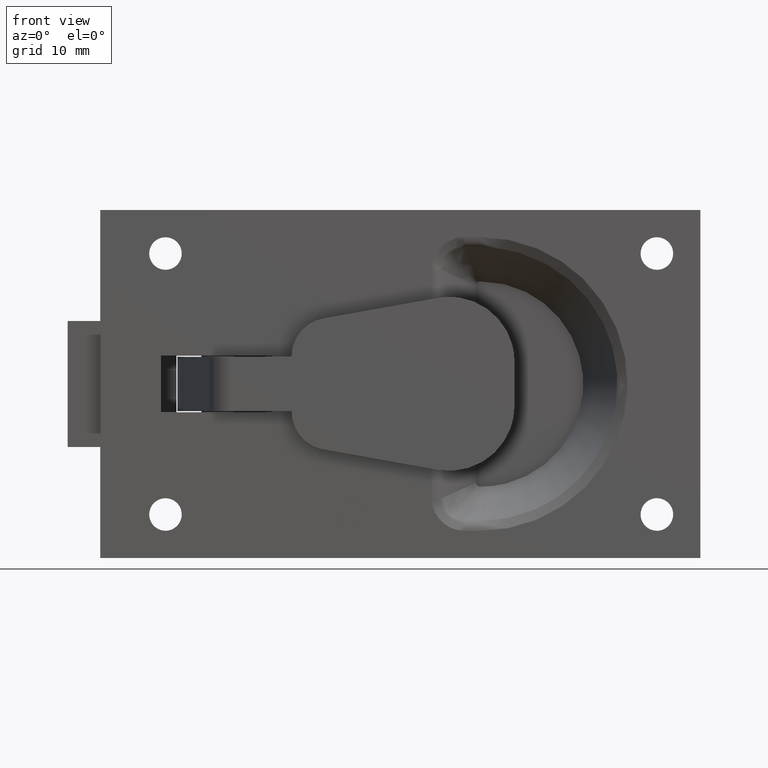
[diagram: clean part render]
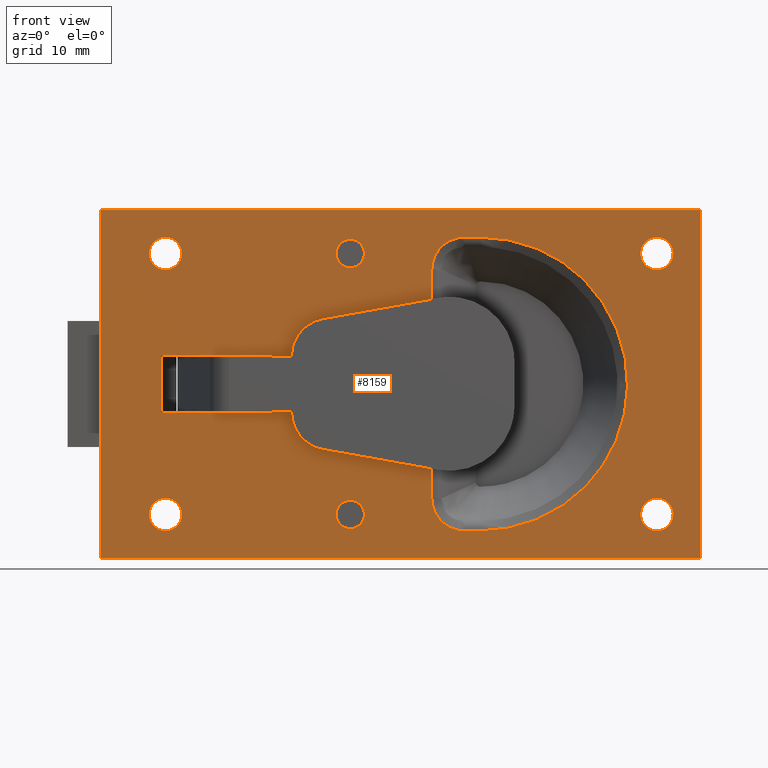
[diagram: same view with one face highlighted and labeled with its STEP entity id]
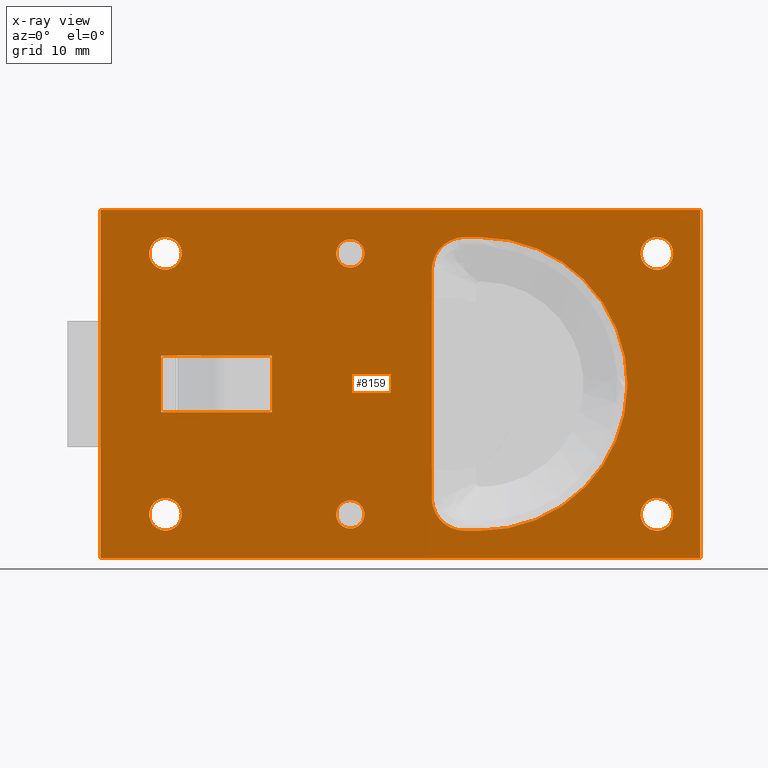
[diagram: x-ray of the same camera — body ghosted, the highlighted face saturated]
A machine part, front view. The second image highlights one B-rep face of the part: STEP entity #8159.
The next image is the same camera in x-ray: the body ghosted, the highlighted face saturated — about 0% of this face is hidden behind the body in this view.
In plain terms, the highlighted face is a freeform B-spline surface patch.
Its self-contained STEP definition (entity closure, byte-faithful):
#4778=CARTESIAN_POINT('',(12.200058000000000,0.0,13.300000000000001));
#4779=VERTEX_POINT('',#4778);
#4780=CARTESIAN_POINT('',(13.496050533848431,6.245005E-017,12.101996824505150));
#4781=VERTEX_POINT('',#4780);
#4782=CARTESIAN_POINT('',(12.200058000000000,0.0,13.300000000000001));
#4783=CARTESIAN_POINT('',(13.401765639046014,0.0,13.299999999999999));
#4784=CARTESIAN_POINT('',(13.496050533848431,6.245005E-017,12.101996824505145));
#4792=(BOUNDED_CURVE()B_SPLINE_CURVE(2,(#4782,#4783,#4784),.UNSPECIFIED.,.F.,.U.)B_SPLINE_CURVE_WITH_KNOTS((3,3),(0.0,0.236331300617172),.UNSPECIFIED.)CURVE()GEOMETRIC_REPRESENTATION_ITEM()RATIONAL_B_SPLINE_CURVE((1.0,0.723120658623467,0.969723356139271))REPRESENTATION_ITEM(''));
#4793=EDGE_CURVE('',#4779,#4781,#4792,.T.);
#4795=CARTESIAN_POINT('',(10.904065466151570,6.245005E-017,11.898003175494850));
#4796=VERTEX_POINT('',#4795);
#4797=CARTESIAN_POINT('',(10.904065466151577,6.245005E-017,11.898003175494852));
#4798=CARTESIAN_POINT('',(10.900058000000003,0.0,11.948922860830809));
#4799=CARTESIAN_POINT('',(10.900058000000000,0.0,12.0));
#4800=CARTESIAN_POINT('',(10.900058000000001,0.0,13.299999999999997));
#4801=CARTESIAN_POINT('',(12.200058000000000,0.0,13.300000000000001));
#4809=(BOUNDED_CURVE()B_SPLINE_CURVE(2,(#4797,#4798,#4799,#4800,#4801),.UNSPECIFIED.,.F.,.U.)B_SPLINE_CURVE_WITH_KNOTS((3,2,3),(0.736331300617172,0.750000000000000,1.0),.UNSPECIFIED.)CURVE()GEOMETRIC_REPRESENTATION_ITEM()RATIONAL_B_SPLINE_CURVE((0.969723356139271,0.983986122563081,1.0,0.707106781186548,1.0))REPRESENTATION_ITEM(''));
#4810=EDGE_CURVE('',#4796,#4779,#4809,.T.);
#4877=CARTESIAN_POINT('',(12.200058000000000,0.0,10.699999999999999));
#4878=VERTEX_POINT('',#4877);
#4879=CARTESIAN_POINT('',(13.496050533848432,6.245005E-017,12.101996824505147));
#4880=CARTESIAN_POINT('',(13.500058000000003,0.0,12.051077139169195));
#4881=CARTESIAN_POINT('',(13.500057999999999,0.0,12.0));
#4882=CARTESIAN_POINT('',(13.500058000000001,0.0,10.700000000000001));
#4883=CARTESIAN_POINT('',(12.200058000000000,0.0,10.699999999999999));
#4891=(BOUNDED_CURVE()B_SPLINE_CURVE(2,(#4879,#4880,#4881,#4882,#4883),.UNSPECIFIED.,.F.,.U.)B_SPLINE_CURVE_WITH_KNOTS((3,2,3),(0.236331300617172,0.250000000000000,0.500000000000000),.UNSPECIFIED.)CURVE()GEOMETRIC_REPRESENTATION_ITEM()RATIONAL_B_SPLINE_CURVE((0.969723356139271,0.983986122563081,1.0,0.707106781186548,1.0))REPRESENTATION_ITEM(''));
#4892=EDGE_CURVE('',#4781,#4878,#4891,.T.);
#4926=CARTESIAN_POINT('',(12.200058000000000,0.0,10.699999999999999));
#4927=CARTESIAN_POINT('',(10.998350360953994,0.0,10.699999999999999));
#4928=CARTESIAN_POINT('',(10.904065466151577,6.245005E-017,11.898003175494852));
#4936=(BOUNDED_CURVE()B_SPLINE_CURVE(2,(#4926,#4927,#4928),.UNSPECIFIED.,.F.,.U.)B_SPLINE_CURVE_WITH_KNOTS((3,3),(0.500000000000000,0.736331300617172),.UNSPECIFIED.)CURVE()GEOMETRIC_REPRESENTATION_ITEM()RATIONAL_B_SPLINE_CURVE((1.0,0.723120658623468,0.969723356139270))REPRESENTATION_ITEM(''));
#4937=EDGE_CURVE('',#4878,#4796,#4936,.T.);
#4960=CARTESIAN_POINT('',(-4.799987999999900,0.0,13.500000000000000));
#4961=VERTEX_POINT('',#4960);
#4962=CARTESIAN_POINT('',(-3.304611999418259,6.245005E-017,12.117688643821120));
#4963=VERTEX_POINT('',#4962);
#4964=CARTESIAN_POINT('',(-4.799987999999900,0.0,13.500000000000000));
#4965=CARTESIAN_POINT('',(-3.413402262939234,0.0,13.499999999999998));
#4966=CARTESIAN_POINT('',(-3.304611999418259,6.245005E-017,12.117688643821113));
#4974=(BOUNDED_CURVE()B_SPLINE_CURVE(2,(#4964,#4965,#4966),.UNSPECIFIED.,.F.,.U.)B_SPLINE_CURVE_WITH_KNOTS((3,3),(0.0,0.236331300580183),.UNSPECIFIED.)CURVE()GEOMETRIC_REPRESENTATION_ITEM()RATIONAL_B_SPLINE_CURVE((1.0,0.723120658666803,0.969723356062077))REPRESENTATION_ITEM(''));
#4975=EDGE_CURVE('',#4961,#4963,#4974,.T.);
#4977=CARTESIAN_POINT('',(-6.295364000581542,6.245005E-017,11.882311356178880));
#4978=VERTEX_POINT('',#4977);
#4979=CARTESIAN_POINT('',(-6.295364000581542,6.245005E-017,11.882311356178878));
#4980=CARTESIAN_POINT('',(-6.299987999999900,0.0,11.941064839258081));
#4981=CARTESIAN_POINT('',(-6.299987999999900,0.0,12.0));
#4982=CARTESIAN_POINT('',(-6.299987999999900,0.0,13.500000000000000));
#4983=CARTESIAN_POINT('',(-4.799987999999900,0.0,13.500000000000000));
#4991=(BOUNDED_CURVE()B_SPLINE_CURVE(2,(#4979,#4980,#4981,#4982,#4983),.UNSPECIFIED.,.F.,.U.)B_SPLINE_CURVE_WITH_KNOTS((3,2,3),(0.736331300580183,0.750000000000000,1.0),.UNSPECIFIED.)CURVE()GEOMETRIC_REPRESENTATION_ITEM()RATIONAL_B_SPLINE_CURVE((0.969723356062077,0.983986122519745,1.0,0.707106781186548,1.0))REPRESENTATION_ITEM(''));
#4992=EDGE_CURVE('',#4978,#4961,#4991,.T.);
#5059=CARTESIAN_POINT('',(-4.799987999999900,0.0,10.500000000000000));
#5060=VERTEX_POINT('',#5059);
#5061=CARTESIAN_POINT('',(-3.304611999418259,6.245005E-017,12.117688643821113));
#5062=CARTESIAN_POINT('',(-3.299987999999900,0.0,12.058935160741921));
#5063=CARTESIAN_POINT('',(-3.299987999999900,0.0,12.0));
#5064=CARTESIAN_POINT('',(-3.299987999999900,0.0,10.500000000000002));
#5065=CARTESIAN_POINT('',(-4.799987999999900,0.0,10.500000000000000));
#5073=(BOUNDED_CURVE()B_SPLINE_CURVE(2,(#5061,#5062,#5063,#5064,#5065),.UNSPECIFIED.,.F.,.U.)B_SPLINE_CURVE_WITH_KNOTS((3,2,3),(0.236331300580183,0.250000000000000,0.500000000000000),.UNSPECIFIED.)CURVE()GEOMETRIC_REPRESENTATION_ITEM()RATIONAL_B_SPLINE_CURVE((0.969723356062077,0.983986122519745,1.0,0.707106781186548,1.0))REPRESENTATION_ITEM(''));
#5074=EDGE_CURVE('',#4963,#5060,#5073,.T.);
#5108=CARTESIAN_POINT('',(-4.799987999999900,0.0,10.500000000000000));
#5109=CARTESIAN_POINT('',(-6.186573737060571,0.0,10.499999999999998));
#5110=CARTESIAN_POINT('',(-6.295364000581542,6.245005E-017,11.882311356178880));
#5118=(BOUNDED_CURVE()B_SPLINE_CURVE(2,(#5108,#5109,#5110),.UNSPECIFIED.,.F.,.U.)B_SPLINE_CURVE_WITH_KNOTS((3,3),(0.500000000000000,0.736331300580184),.UNSPECIFIED.)CURVE()GEOMETRIC_REPRESENTATION_ITEM()RATIONAL_B_SPLINE_CURVE((1.0,0.723120658666802,0.969723356062078))REPRESENTATION_ITEM(''));
#5119=EDGE_CURVE('',#5060,#4978,#5118,.T.);
#5142=CARTESIAN_POINT('',(40.400009000000097,0.0,13.500000000000000));
#5143=VERTEX_POINT('',#5142);
#5144=CARTESIAN_POINT('',(41.895385000581740,6.245005E-017,12.117688643821120));
#5145=VERTEX_POINT('',#5144);
#5146=CARTESIAN_POINT('',(40.400009000000097,0.0,13.500000000000000));
#5147=CARTESIAN_POINT('',(41.786594737060767,0.0,13.500000000000000));
#5148=CARTESIAN_POINT('',(41.895385000581747,6.245005E-017,12.117688643821122));
#5156=(BOUNDED_CURVE()B_SPLINE_CURVE(2,(#5146,#5147,#5148),.UNSPECIFIED.,.F.,.U.)B_SPLINE_CURVE_WITH_KNOTS((3,3),(0.0,0.236331300580183),.UNSPECIFIED.)CURVE()GEOMETRIC_REPRESENTATION_ITEM()RATIONAL_B_SPLINE_CURVE((1.0,0.723120658666802,0.969723356062077))REPRESENTATION_ITEM(''));
#5157=EDGE_CURVE('',#5143,#5145,#5156,.T.);
#5159=CARTESIAN_POINT('',(38.904632999418453,6.245005E-017,11.882311356178880));
#5160=VERTEX_POINT('',#5159);
#5161=CARTESIAN_POINT('',(38.904632999418453,6.245005E-017,11.882311356178878));
#5162=CARTESIAN_POINT('',(38.900009000000104,0.0,11.941064839258081));
#5163=CARTESIAN_POINT('',(38.900009000000097,0.0,12.0));
#5164=CARTESIAN_POINT('',(38.900009000000097,0.0,13.500000000000000));
#5165=CARTESIAN_POINT('',(40.400009000000097,0.0,13.500000000000000));
#5173=(BOUNDED_CURVE()B_SPLINE_CURVE(2,(#5161,#5162,#5163,#5164,#5165),.UNSPECIFIED.,.F.,.U.)B_SPLINE_CURVE_WITH_KNOTS((3,2,3),(0.736331300580183,0.750000000000000,1.0),.UNSPECIFIED.)CURVE()GEOMETRIC_REPRESENTATION_ITEM()RATIONAL_B_SPLINE_CURVE((0.969723356062077,0.983986122519745,1.0,0.707106781186548,1.0))REPRESENTATION_ITEM(''));
#5174=EDGE_CURVE('',#5160,#5143,#5173,.T.);
#5241=CARTESIAN_POINT('',(40.400009000000097,0.0,10.500000000000000));
#5242=VERTEX_POINT('',#5241);
#5243=CARTESIAN_POINT('',(41.895385000581747,6.245005E-017,12.117688643821122));
#5244=CARTESIAN_POINT('',(41.900009000000097,0.0,12.058935160741919));
#5245=CARTESIAN_POINT('',(41.900009000000097,0.0,12.0));
#5246=CARTESIAN_POINT('',(41.900009000000097,0.0,10.500000000000002));
#5247=CARTESIAN_POINT('',(40.400009000000097,0.0,10.500000000000000));
#5255=(BOUNDED_CURVE()B_SPLINE_CURVE(2,(#5243,#5244,#5245,#5246,#5247),.UNSPECIFIED.,.F.,.U.)B_SPLINE_CURVE_WITH_KNOTS((3,2,3),(0.236331300580183,0.250000000000000,0.500000000000000),.UNSPECIFIED.)CURVE()GEOMETRIC_REPRESENTATION_ITEM()RATIONAL_B_SPLINE_CURVE((0.969723356062077,0.983986122519745,1.0,0.707106781186548,1.0))REPRESENTATION_ITEM(''));
#5256=EDGE_CURVE('',#5145,#5242,#5255,.T.);
#5290=CARTESIAN_POINT('',(40.400009000000097,0.0,10.500000000000000));
#5291=CARTESIAN_POINT('',(39.013423262939419,0.0,10.499999999999998));
#5292=CARTESIAN_POINT('',(38.904632999418453,6.245005E-017,11.882311356178880));
#5300=(BOUNDED_CURVE()B_SPLINE_CURVE(2,(#5290,#5291,#5292),.UNSPECIFIED.,.F.,.U.)B_SPLINE_CURVE_WITH_KNOTS((3,3),(0.500000000000000,0.736331300580184),.UNSPECIFIED.)CURVE()GEOMETRIC_REPRESENTATION_ITEM()RATIONAL_B_SPLINE_CURVE((1.0,0.723120658666802,0.969723356062078))REPRESENTATION_ITEM(''));
#5301=EDGE_CURVE('',#5242,#5160,#5300,.T.);
#5324=CARTESIAN_POINT('',(40.400009000000097,0.0,-10.500000000000000));
#5325=VERTEX_POINT('',#5324);
#5326=CARTESIAN_POINT('',(41.895385000581740,6.245005E-017,-11.882311356178880));
#5327=VERTEX_POINT('',#5326);
#5328=CARTESIAN_POINT('',(40.400009000000097,0.0,-10.500000000000000));
#5329=CARTESIAN_POINT('',(41.786594737060753,0.0,-10.499999999999998));
#5330=CARTESIAN_POINT('',(41.895385000581740,6.245005E-017,-11.882311356178878));
#5338=(BOUNDED_CURVE()B_SPLINE_CURVE(2,(#5328,#5329,#5330),.UNSPECIFIED.,.F.,.U.)B_SPLINE_CURVE_WITH_KNOTS((3,3),(0.0,0.236331300580183),.UNSPECIFIED.)CURVE()GEOMETRIC_REPRESENTATION_ITEM()RATIONAL_B_SPLINE_CURVE((1.0,0.723120658666803,0.969723356062077))REPRESENTATION_ITEM(''));
#5339=EDGE_CURVE('',#5325,#5327,#5338,.T.);
#5341=CARTESIAN_POINT('',(38.904632999418453,6.245005E-017,-12.117688643821120));
#5342=VERTEX_POINT('',#5341);
#5343=CARTESIAN_POINT('',(38.904632999418453,6.245005E-017,-12.117688643821117));
#5344=CARTESIAN_POINT('',(38.900009000000104,0.0,-12.058935160741916));
#5345=CARTESIAN_POINT('',(38.900009000000097,0.0,-12.0));
#5346=CARTESIAN_POINT('',(38.900009000000097,0.0,-10.500000000000002));
#5347=CARTESIAN_POINT('',(40.400009000000097,0.0,-10.500000000000000));
#5355=(BOUNDED_CURVE()B_SPLINE_CURVE(2,(#5343,#5344,#5345,#5346,#5347),.UNSPECIFIED.,.F.,.U.)B_SPLINE_CURVE_WITH_KNOTS((3,2,3),(0.736331300580183,0.750000000000000,1.0),.UNSPECIFIED.)CURVE()GEOMETRIC_REPRESENTATION_ITEM()RATIONAL_B_SPLINE_CURVE((0.969723356062078,0.983986122519745,1.0,0.707106781186548,1.0))REPRESENTATION_ITEM(''));
#5356=EDGE_CURVE('',#5342,#5325,#5355,.T.);
#5423=CARTESIAN_POINT('',(40.400009000000097,0.0,-13.500000000000000));
#5424=VERTEX_POINT('',#5423);
#5425=CARTESIAN_POINT('',(41.895385000581740,6.245005E-017,-11.882311356178880));
#5426=CARTESIAN_POINT('',(41.900009000000082,0.0,-11.941064839258081));
#5427=CARTESIAN_POINT('',(41.900009000000097,0.0,-12.0));
#5428=CARTESIAN_POINT('',(41.900009000000097,0.0,-13.500000000000000));
#5429=CARTESIAN_POINT('',(40.400009000000097,0.0,-13.500000000000000));
#5437=(BOUNDED_CURVE()B_SPLINE_CURVE(2,(#5425,#5426,#5427,#5428,#5429),.UNSPECIFIED.,.F.,.U.)B_SPLINE_CURVE_WITH_KNOTS((3,2,3),(0.236331300580183,0.250000000000000,0.500000000000000),.UNSPECIFIED.)CURVE()GEOMETRIC_REPRESENTATION_ITEM()RATIONAL_B_SPLINE_CURVE((0.969723356062077,0.983986122519745,1.0,0.707106781186548,1.0))REPRESENTATION_ITEM(''));
#5438=EDGE_CURVE('',#5327,#5424,#5437,.T.);
#5472=CARTESIAN_POINT('',(40.400009000000097,0.0,-13.500000000000000));
#5473=CARTESIAN_POINT('',(39.013423262939419,0.0,-13.499999999999998));
#5474=CARTESIAN_POINT('',(38.904632999418453,6.245005E-017,-12.117688643821118));
#5482=(BOUNDED_CURVE()B_SPLINE_CURVE(2,(#5472,#5473,#5474),.UNSPECIFIED.,.F.,.U.)B_SPLINE_CURVE_WITH_KNOTS((3,3),(0.500000000000000,0.736331300580184),.UNSPECIFIED.)CURVE()GEOMETRIC_REPRESENTATION_ITEM()RATIONAL_B_SPLINE_CURVE((1.0,0.723120658666802,0.969723356062078))REPRESENTATION_ITEM(''));
#5483=EDGE_CURVE('',#5424,#5342,#5482,.T.);
#5506=CARTESIAN_POINT('',(12.200058000000000,0.0,-10.699999999999999));
#5507=VERTEX_POINT('',#5506);
#5508=CARTESIAN_POINT('',(13.496050533848431,6.245005E-017,-11.898003175494850));
#5509=VERTEX_POINT('',#5508);
#5510=CARTESIAN_POINT('',(12.200058000000000,0.0,-10.699999999999999));
#5511=CARTESIAN_POINT('',(13.401765639046012,0.0,-10.699999999999999));
#5512=CARTESIAN_POINT('',(13.496050533848431,6.245005E-017,-11.898003175494850));
#5520=(BOUNDED_CURVE()B_SPLINE_CURVE(2,(#5510,#5511,#5512),.UNSPECIFIED.,.F.,.U.)B_SPLINE_CURVE_WITH_KNOTS((3,3),(0.0,0.236331300617173),.UNSPECIFIED.)CURVE()GEOMETRIC_REPRESENTATION_ITEM()RATIONAL_B_SPLINE_CURVE((1.0,0.723120658623467,0.969723356139271))REPRESENTATION_ITEM(''));
#5521=EDGE_CURVE('',#5507,#5509,#5520,.T.);
#5523=CARTESIAN_POINT('',(10.904065466151570,6.245005E-017,-12.101996824505150));
#5524=VERTEX_POINT('',#5523);
#5525=CARTESIAN_POINT('',(10.904065466151570,6.245005E-017,-12.101996824505150));
#5526=CARTESIAN_POINT('',(10.900058000000003,0.0,-12.051077139169189));
#5527=CARTESIAN_POINT('',(10.900058000000000,0.0,-12.0));
#5528=CARTESIAN_POINT('',(10.900058000000001,0.0,-10.700000000000001));
#5529=CARTESIAN_POINT('',(12.200058000000000,0.0,-10.699999999999999));
#5537=(BOUNDED_CURVE()B_SPLINE_CURVE(2,(#5525,#5526,#5527,#5528,#5529),.UNSPECIFIED.,.F.,.U.)B_SPLINE_CURVE_WITH_KNOTS((3,2,3),(0.736331300617172,0.750000000000000,1.0),.UNSPECIFIED.)CURVE()GEOMETRIC_REPRESENTATION_ITEM()RATIONAL_B_SPLINE_CURVE((0.969723356139271,0.983986122563080,1.0,0.707106781186548,1.0))REPRESENTATION_ITEM(''));
#5538=EDGE_CURVE('',#5524,#5507,#5537,.T.);
#5605=CARTESIAN_POINT('',(12.200058000000000,0.0,-13.300000000000001));
#5606=VERTEX_POINT('',#5605);
#5607=CARTESIAN_POINT('',(13.496050533848431,6.245005E-017,-11.898003175494850));
#5608=CARTESIAN_POINT('',(13.500058000000003,0.0,-11.948922860830807));
#5609=CARTESIAN_POINT('',(13.500057999999999,0.0,-12.0));
#5610=CARTESIAN_POINT('',(13.500058000000001,0.0,-13.299999999999997));
#5611=CARTESIAN_POINT('',(12.200058000000000,0.0,-13.300000000000001));
#5619=(BOUNDED_CURVE()B_SPLINE_CURVE(2,(#5607,#5608,#5609,#5610,#5611),.UNSPECIFIED.,.F.,.U.)B_SPLINE_CURVE_WITH_KNOTS((3,2,3),(0.236331300617173,0.250000000000000,0.500000000000000),.UNSPECIFIED.)CURVE()GEOMETRIC_REPRESENTATION_ITEM()RATIONAL_B_SPLINE_CURVE((0.969723356139271,0.983986122563081,1.0,0.707106781186548,1.0))REPRESENTATION_ITEM(''));
#5620=EDGE_CURVE('',#5509,#5606,#5619,.T.);
#5654=CARTESIAN_POINT('',(12.200058000000000,0.0,-13.300000000000001));
#5655=CARTESIAN_POINT('',(10.998350360953994,0.0,-13.299999999999999));
#5656=CARTESIAN_POINT('',(10.904065466151577,6.245005E-017,-12.101996824505148));
#5664=(BOUNDED_CURVE()B_SPLINE_CURVE(2,(#5654,#5655,#5656),.UNSPECIFIED.,.F.,.U.)B_SPLINE_CURVE_WITH_KNOTS((3,3),(0.500000000000000,0.736331300617172),.UNSPECIFIED.)CURVE()GEOMETRIC_REPRESENTATION_ITEM()RATIONAL_B_SPLINE_CURVE((1.0,0.723120658623468,0.969723356139270))REPRESENTATION_ITEM(''));
#5665=EDGE_CURVE('',#5606,#5524,#5664,.T.);
#5688=CARTESIAN_POINT('',(-4.799987999999900,0.0,-10.500000000000000));
#5689=VERTEX_POINT('',#5688);
#5690=CARTESIAN_POINT('',(-3.304611999418259,6.245005E-017,-11.882311356178880));
#5691=VERTEX_POINT('',#5690);
#5692=CARTESIAN_POINT('',(-4.799987999999900,0.0,-10.500000000000000));
#5693=CARTESIAN_POINT('',(-3.413402262939234,0.0,-10.500000000000000));
#5694=CARTESIAN_POINT('',(-3.304611999418259,6.245005E-017,-11.882311356178880));
#5702=(BOUNDED_CURVE()B_SPLINE_CURVE(2,(#5692,#5693,#5694),.UNSPECIFIED.,.F.,.U.)B_SPLINE_CURVE_WITH_KNOTS((3,3),(0.0,0.236331300580183),.UNSPECIFIED.)CURVE()GEOMETRIC_REPRESENTATION_ITEM()RATIONAL_B_SPLINE_CURVE((1.0,0.723120658666803,0.969723356062077))REPRESENTATION_ITEM(''));
#5703=EDGE_CURVE('',#5689,#5691,#5702,.T.);
#5705=CARTESIAN_POINT('',(-6.295364000581541,6.245005E-017,-12.117688643821120));
#5706=VERTEX_POINT('',#5705);
#5707=CARTESIAN_POINT('',(-6.295364000581541,6.245005E-017,-12.117688643821113));
#5708=CARTESIAN_POINT('',(-6.299987999999901,0.0,-12.058935160741921));
#5709=CARTESIAN_POINT('',(-6.299987999999900,0.0,-12.0));
#5710=CARTESIAN_POINT('',(-6.299987999999900,0.0,-10.500000000000002));
#5711=CARTESIAN_POINT('',(-4.799987999999900,0.0,-10.500000000000000));
#5719=(BOUNDED_CURVE()B_SPLINE_CURVE(2,(#5707,#5708,#5709,#5710,#5711),.UNSPECIFIED.,.F.,.U.)B_SPLINE_CURVE_WITH_KNOTS((3,2,3),(0.736331300580183,0.750000000000000,1.0),.UNSPECIFIED.)CURVE()GEOMETRIC_REPRESENTATION_ITEM()RATIONAL_B_SPLINE_CURVE((0.969723356062077,0.983986122519745,1.0,0.707106781186548,1.0))REPRESENTATION_ITEM(''));
#5720=EDGE_CURVE('',#5706,#5689,#5719,.T.);
#5787=CARTESIAN_POINT('',(-4.799987999999900,0.0,-13.500000000000000));
#5788=VERTEX_POINT('',#5787);
#5789=CARTESIAN_POINT('',(-3.304611999418259,6.245005E-017,-11.882311356178880));
#5790=CARTESIAN_POINT('',(-3.299987999999900,0.0,-11.941064839258082));
#5791=CARTESIAN_POINT('',(-3.299987999999900,0.0,-12.0));
#5792=CARTESIAN_POINT('',(-3.299987999999900,0.0,-13.500000000000000));
#5793=CARTESIAN_POINT('',(-4.799987999999900,0.0,-13.500000000000000));
#5801=(BOUNDED_CURVE()B_SPLINE_CURVE(2,(#5789,#5790,#5791,#5792,#5793),.UNSPECIFIED.,.F.,.U.)B_SPLINE_CURVE_WITH_KNOTS((3,2,3),(0.236331300580183,0.250000000000000,0.500000000000000),.UNSPECIFIED.)CURVE()GEOMETRIC_REPRESENTATION_ITEM()RATIONAL_B_SPLINE_CURVE((0.969723356062077,0.983986122519745,1.0,0.707106781186548,1.0))REPRESENTATION_ITEM(''));
#5802=EDGE_CURVE('',#5691,#5788,#5801,.T.);
#5836=CARTESIAN_POINT('',(-4.799987999999900,0.0,-13.500000000000000));
#5837=CARTESIAN_POINT('',(-6.186573737060571,0.0,-13.499999999999998));
#5838=CARTESIAN_POINT('',(-6.295364000581541,6.245005E-017,-12.117688643821118));
#5846=(BOUNDED_CURVE()B_SPLINE_CURVE(2,(#5836,#5837,#5838),.UNSPECIFIED.,.F.,.U.)B_SPLINE_CURVE_WITH_KNOTS((3,3),(0.500000000000000,0.736331300580184),.UNSPECIFIED.)CURVE()GEOMETRIC_REPRESENTATION_ITEM()RATIONAL_B_SPLINE_CURVE((1.0,0.723120658666802,0.969723356062078))REPRESENTATION_ITEM(''));
#5847=EDGE_CURVE('',#5788,#5706,#5846,.T.);
#6522=CARTESIAN_POINT('',(22.696119799894401,0.0,-13.499997499607099));
#6523=VERTEX_POINT('',#6522);
#6537=CARTESIAN_POINT('',(24.200012000000001,0.0,-13.499997499607099));
#6538=VERTEX_POINT('',#6537);
#6539=CARTESIAN_POINT('',(24.200012000000001,0.0,-13.499997499607099));
#6540=CARTESIAN_POINT('',(22.696119799894401,0.0,-13.499997499607099));
#6541=QUASI_UNIFORM_CURVE('',1,(#6539,#6540),.UNSPECIFIED.,.F.,.U.);
#6542=EDGE_CURVE('',#6538,#6523,#6541,.T.);
#6590=CARTESIAN_POINT('',(24.200012000000001,0.0,13.499997499607099));
#6591=VERTEX_POINT('',#6590);
#6623=CARTESIAN_POINT('',(24.200012000000001,0.0,13.499997499607099));
#6624=CARTESIAN_POINT('',(37.700009499607098,0.0,13.499997499607103));
#6625=CARTESIAN_POINT('',(37.700009499607098,0.0,0.0));
#6626=CARTESIAN_POINT('',(37.700009499607098,0.0,-13.499997499607103));
#6627=CARTESIAN_POINT('',(24.200012000000001,0.0,-13.499997499607099));
#6635=(BOUNDED_CURVE()B_SPLINE_CURVE(2,(#6623,#6624,#6625,#6626,#6627),.UNSPECIFIED.,.F.,.U.)B_SPLINE_CURVE_WITH_KNOTS((3,2,3),(0.0,0.500000000000000,1.0),.UNSPECIFIED.)CURVE()GEOMETRIC_REPRESENTATION_ITEM()RATIONAL_B_SPLINE_CURVE((1.0,0.707106781186548,1.0,0.707106781186548,1.0))REPRESENTATION_ITEM(''));
#6636=EDGE_CURVE('',#6591,#6538,#6635,.T.);
#6751=CARTESIAN_POINT('',(19.700014500392900,0.0,-10.503892200105600));
#6752=VERTEX_POINT('',#6751);
#6766=CARTESIAN_POINT('',(22.696119799894401,0.0,-13.499997499607099));
#6767=CARTESIAN_POINT('',(22.498099910292449,-2.708339E-032,-13.499997499607110));
#6768=CARTESIAN_POINT('',(22.303271037720091,1.084202E-015,-13.481093519226890));
#6769=CARTESIAN_POINT('',(22.015701496652500,1.084202E-015,-13.425049568992890));
#6770=CARTESIAN_POINT('',(21.920629157951929,-2.840610E-014,-13.401722702423800));
#6771=CARTESIAN_POINT('',(21.732098740344249,-2.840610E-014,-13.345505894197860));
#6772=CARTESIAN_POINT('',(21.638316122742939,-1.843144E-014,-13.312434017988920));
#6773=CARTESIAN_POINT('',(21.365447147052180,-1.843144E-014,-13.200754719445239));
#6774=CARTESIAN_POINT('',(21.192929815651240,1.301043E-015,-13.109398937206301));
#6775=CARTESIAN_POINT('',(20.948193868455370,1.301043E-015,-12.947106111890591));
#6776=CARTESIAN_POINT('',(20.868830049787348,6.505213E-016,-12.888654467445511));
#6777=CARTESIAN_POINT('',(20.715600092471220,6.505213E-016,-12.763408687607059));
#6778=CARTESIAN_POINT('',(20.642752062096388,-2.168404E-016,-12.697470610011621));
#6779=CARTESIAN_POINT('',(20.435135802269311,-2.168404E-016,-12.490039093174360));
#6780=CARTESIAN_POINT('',(20.311195104870411,-1.084202E-015,-12.339016640490261));
#6781=CARTESIAN_POINT('',(20.174687881640740,-1.084202E-015,-12.134028828179540));
#6782=CARTESIAN_POINT('',(20.148246157350961,-1.084202E-015,-12.092093830702421));
#6783=CARTESIAN_POINT('',(20.097651205574898,-1.084202E-015,-12.007216668000890));
#6784=CARTESIAN_POINT('',(20.073509064243510,1.084202E-015,-11.964310098942720));
#6785=CARTESIAN_POINT('',(20.004476335121890,1.084202E-015,-11.834215718541341));
#6786=CARTESIAN_POINT('',(19.921466967971000,1.951564E-015,-11.657097060875341));
#6787=CARTESIAN_POINT('',(19.856156263432489,-1.069023E-013,-11.472809262034890));
#6788=CARTESIAN_POINT('',(19.813857449361588,-1.069023E-013,-11.331885859388141));
#6789=CARTESIAN_POINT('',(19.800873730302740,1.084202E-015,-11.284459383582989));
#6790=CARTESIAN_POINT('',(19.777169303572389,1.084202E-015,-11.188689761121740));
#6791=CARTESIAN_POINT('',(19.766437138084608,-1.517883E-015,-11.140265944334420));
#6792=CARTESIAN_POINT('',(19.718922066175519,-1.517883E-015,-10.897909623442480));
#6793=CARTESIAN_POINT('',(19.700014500392921,9.148167E-031,-10.701934950284670));
#6794=CARTESIAN_POINT('',(19.700014500392900,-3.592196E-045,-10.503892200105600));
#6795=B_SPLINE_CURVE_WITH_KNOTS('',3,(#6766,#6767,#6768,#6769,#6770,#6771,#6772,#6773,#6774,#6775,#6776,#6777,#6778,#6779,#6780,#6781,#6782,#6783,#6784,#6785,#6786,#6787,#6788,#6789,#6790,#6791,#6792,#6793,#6794),.UNSPECIFIED.,.F.,.U.,(4,2,2,2,2,2,2,2,2,2,1,2,2,2,4),(0.0,0.124999999999999,0.187499999999998,0.249999999999997,0.374999999999994,0.437499999999993,0.499999999999992,0.624999999999991,0.656249999999991,0.687499999999991,0.749999999999992,0.812499999999994,0.843749999999995,0.874999999999995,1.0),.UNSPECIFIED.);
#6796=EDGE_CURVE('',#6523,#6752,#6795,.T.);
#6858=CARTESIAN_POINT('',(22.696119799894401,0.0,13.499997499607099));
#6859=VERTEX_POINT('',#6858);
#6881=CARTESIAN_POINT('',(22.696119799894401,0.0,13.499997499607099));
#6882=CARTESIAN_POINT('',(24.200012000000001,0.0,13.499997499607099));
#6883=QUASI_UNIFORM_CURVE('',1,(#6881,#6882),.UNSPECIFIED.,.F.,.U.);
#6884=EDGE_CURVE('',#6859,#6591,#6883,.T.);
#6905=CARTESIAN_POINT('',(19.700014500392900,0.0,10.503892200105600));
#6906=VERTEX_POINT('',#6905);
#6920=CARTESIAN_POINT('',(19.700014500392900,0.0,-10.503892200105600));
#6921=CARTESIAN_POINT('',(19.700014500392900,0.0,10.503892200105600));
#6922=QUASI_UNIFORM_CURVE('',1,(#6920,#6921),.UNSPECIFIED.,.F.,.U.);
#6923=EDGE_CURVE('',#6752,#6906,#6922,.T.);
#7043=CARTESIAN_POINT('',(19.700014500392900,0.0,10.503892200105600));
#7044=CARTESIAN_POINT('',(19.700014500392900,-2.567907E-031,10.701912089707550));
#7045=CARTESIAN_POINT('',(19.718918480773119,2.602085E-015,10.896740962279910));
#7046=CARTESIAN_POINT('',(19.774962431007118,2.602085E-015,11.184310503347490));
#7047=CARTESIAN_POINT('',(19.798289297576211,-1.517883E-015,11.279382842047960));
#7048=CARTESIAN_POINT('',(19.854506105802130,-1.517883E-015,11.467913259655630));
#7049=CARTESIAN_POINT('',(19.887577982011120,6.505213E-016,11.561695877257090));
#7050=CARTESIAN_POINT('',(19.999257280554779,6.505213E-016,11.834564852947841));
#7051=CARTESIAN_POINT('',(20.090613062793700,1.084202E-015,12.007082184348750));
#7052=CARTESIAN_POINT('',(20.252905888109410,1.084202E-015,12.251818131544610));
#7053=CARTESIAN_POINT('',(20.311357532554499,-1.084202E-015,12.331181950212651));
#7054=CARTESIAN_POINT('',(20.436603312392950,-1.084202E-015,12.484411907528781));
#7055=CARTESIAN_POINT('',(20.502541389988380,1.301043E-015,12.557259937903609));
#7056=CARTESIAN_POINT('',(20.709972906825641,1.301043E-015,12.764876197730690));
#7057=CARTESIAN_POINT('',(20.860995359509729,1.084202E-015,12.888816895129580));
#7058=CARTESIAN_POINT('',(21.065983171820459,1.084202E-015,13.025324118359251));
#7059=CARTESIAN_POINT('',(21.107918169297591,-2.168404E-016,13.051765842649040));
#7060=CARTESIAN_POINT('',(21.192795331999118,-2.168404E-016,13.102360794425101));
#7061=CARTESIAN_POINT('',(21.235701901057290,-1.084202E-015,13.126502935756490));
#7062=CARTESIAN_POINT('',(21.365796281458682,-1.084202E-015,13.195535664878131));
#7063=CARTESIAN_POINT('',(21.542914939124660,-2.168404E-016,13.278545032028999));
#7064=CARTESIAN_POINT('',(21.727202737965062,-2.385245E-015,13.343855736567420));
#7065=CARTESIAN_POINT('',(21.868126140611810,-2.385245E-015,13.386154550638331));
#7066=CARTESIAN_POINT('',(21.915552616416999,2.168404E-016,13.399138269697250));
#7067=CARTESIAN_POINT('',(22.011322238878261,2.168404E-016,13.422842696427610));
#7068=CARTESIAN_POINT('',(22.059746055665581,6.505213E-016,13.433574861915380));
#7069=CARTESIAN_POINT('',(22.302102376557531,6.505213E-016,13.481089933824480));
#7070=CARTESIAN_POINT('',(22.498077049715342,-3.370377E-031,13.499997499607099));
#7071=CARTESIAN_POINT('',(22.696119799894401,1.539512E-045,13.499997499607099));
#7072=B_SPLINE_CURVE_WITH_KNOTS('',3,(#7043,#7044,#7045,#7046,#7047,#7048,#7049,#7050,#7051,#7052,#7053,#7054,#7055,#7056,#7057,#7058,#7059,#7060,#7061,#7062,#7063,#7064,#7065,#7066,#7067,#7068,#7069,#7070,#7071),.UNSPECIFIED.,.F.,.U.,(4,2,2,2,2,2,2,2,2,2,1,2,2,2,4),(0.0,0.125000000000002,0.187500000000003,0.250000000000004,0.375000000000006,0.437500000000007,0.500000000000008,0.625000000000010,0.656250000000011,0.687500000000011,0.750000000000011,0.812500000000011,0.843750000000010,0.875000000000009,1.0),.UNSPECIFIED.);
#7073=EDGE_CURVE('',#6906,#6859,#7072,.T.);
#8050=CARTESIAN_POINT('',(-13.557227743161601,0.0,17.598399937977788));
#8051=CARTESIAN_POINT('',(47.157250223741087,0.0,17.598399937977788));
#8052=CARTESIAN_POINT('',(-13.557227743161601,0.0,-17.598400796284679));
#8053=CARTESIAN_POINT('',(47.157250223741087,0.0,-17.598400796284679));
#8054=B_SPLINE_SURFACE_WITH_KNOTS('',1,1,((#8050,#8052),(#8051,#8053)),.UNSPECIFIED.,.F.,.F.,.U.,(2,2),(2,2),(0.0,60.714477966902699),(0.0,35.196800734262467),.UNSPECIFIED.);
#8055=CARTESIAN_POINT('',(44.400009000000097,0.0,16.0));
#8056=VERTEX_POINT('',#8055);
#8057=CARTESIAN_POINT('',(44.400009000000097,0.0,-16.0));
#8058=VERTEX_POINT('',#8057);
#8059=CARTESIAN_POINT('',(44.400009000000097,0.0,16.0));
#8060=CARTESIAN_POINT('',(44.400009000000097,0.0,-16.0));
#8061=QUASI_UNIFORM_CURVE('',1,(#8059,#8060),.UNSPECIFIED.,.F.,.U.);
#8062=EDGE_CURVE('',#8056,#8058,#8061,.T.);
#8063=ORIENTED_EDGE('',*,*,#8062,.F.);
#8064=CARTESIAN_POINT('',(-10.799987999999900,0.0,16.0));
#8065=VERTEX_POINT('',#8064);
#8066=CARTESIAN_POINT('',(-10.799987999999900,0.0,16.0));
#8067=CARTESIAN_POINT('',(44.400009000000097,0.0,16.0));
#8068=QUASI_UNIFORM_CURVE('',1,(#8066,#8067),.UNSPECIFIED.,.F.,.U.);
#8069=EDGE_CURVE('',#8065,#8056,#8068,.T.);
#8070=ORIENTED_EDGE('',*,*,#8069,.F.);
#8071=CARTESIAN_POINT('',(-10.799987999999900,0.0,-16.0));
#8072=VERTEX_POINT('',#8071);
#8073=CARTESIAN_POINT('',(-10.799987999999900,0.0,-16.0));
#8074=CARTESIAN_POINT('',(-10.799987999999900,0.0,16.0));
#8075=QUASI_UNIFORM_CURVE('',1,(#8073,#8074),.UNSPECIFIED.,.F.,.U.);
#8076=EDGE_CURVE('',#8072,#8065,#8075,.T.);
#8077=ORIENTED_EDGE('',*,*,#8076,.F.);
#8078=CARTESIAN_POINT('',(44.400009000000097,0.0,-16.0));
#8079=CARTESIAN_POINT('',(-10.799987999999900,0.0,-16.0));
#8080=QUASI_UNIFORM_CURVE('',1,(#8078,#8079),.UNSPECIFIED.,.F.,.U.);
#8081=EDGE_CURVE('',#8058,#8072,#8080,.T.);
#8082=ORIENTED_EDGE('',*,*,#8081,.F.);
#8083=EDGE_LOOP('',(#8063,#8070,#8077,#8082));
#8084=FACE_OUTER_BOUND('',#8083,.T.);
#8085=CARTESIAN_POINT('',(5.000012000000099,0.0,-2.600000000000000));
#8086=VERTEX_POINT('',#8085);
#8087=CARTESIAN_POINT('',(5.000012000000099,0.0,2.600000000000000));
#8088=VERTEX_POINT('',#8087);
#8089=CARTESIAN_POINT('',(5.000012000000099,0.0,-2.600000000000000));
#8090=CARTESIAN_POINT('',(5.000012000000099,0.0,2.600000000000000));
#8091=QUASI_UNIFORM_CURVE('',1,(#8089,#8090),.UNSPECIFIED.,.F.,.U.);
#8092=EDGE_CURVE('',#8086,#8088,#8091,.T.);
#8093=ORIENTED_EDGE('',*,*,#8092,.F.);
#8094=CARTESIAN_POINT('',(-5.199987999999900,0.0,-2.600000000000000));
#8095=VERTEX_POINT('',#8094);
#8096=CARTESIAN_POINT('',(-5.199987999999900,0.0,-2.600000000000000));
#8097=CARTESIAN_POINT('',(5.000012000000099,0.0,-2.600000000000000));
#8098=QUASI_UNIFORM_CURVE('',1,(#8096,#8097),.UNSPECIFIED.,.F.,.U.);
#8099=EDGE_CURVE('',#8095,#8086,#8098,.T.);
#8100=ORIENTED_EDGE('',*,*,#8099,.F.);
#8101=CARTESIAN_POINT('',(-5.199987999999900,0.0,2.600000000000000));
#8102=VERTEX_POINT('',#8101);
#8103=CARTESIAN_POINT('',(-5.199987999999900,0.0,2.600000000000000));
#8104=CARTESIAN_POINT('',(-5.199987999999900,0.0,-2.600000000000000));
#8105=QUASI_UNIFORM_CURVE('',1,(#8103,#8104),.UNSPECIFIED.,.F.,.U.);
#8106=EDGE_CURVE('',#8102,#8095,#8105,.T.);
#8107=ORIENTED_EDGE('',*,*,#8106,.F.);
#8108=CARTESIAN_POINT('',(5.000012000000099,0.0,2.600000000000000));
#8109=CARTESIAN_POINT('',(-5.199987999999900,0.0,2.600000000000000));
#8110=QUASI_UNIFORM_CURVE('',1,(#8108,#8109),.UNSPECIFIED.,.F.,.U.);
#8111=EDGE_CURVE('',#8088,#8102,#8110,.T.);
#8112=ORIENTED_EDGE('',*,*,#8111,.F.);
#8113=EDGE_LOOP('',(#8093,#8100,#8107,#8112));
#8114=FACE_BOUND('',#8113,.T.);
#8115=ORIENTED_EDGE('',*,*,#6636,.T.);
#8116=ORIENTED_EDGE('',*,*,#6542,.T.);
#8117=ORIENTED_EDGE('',*,*,#6796,.T.);
#8118=ORIENTED_EDGE('',*,*,#6923,.T.);
#8119=ORIENTED_EDGE('',*,*,#7073,.T.);
#8120=ORIENTED_EDGE('',*,*,#6884,.T.);
#8121=EDGE_LOOP('',(#8115,#8116,#8117,#8118,#8119,#8120));
#8122=FACE_BOUND('',#8121,.T.);
#8123=ORIENTED_EDGE('',*,*,#5847,.T.);
#8124=ORIENTED_EDGE('',*,*,#5720,.T.);
#8125=ORIENTED_EDGE('',*,*,#5703,.T.);
#8126=ORIENTED_EDGE('',*,*,#5802,.T.);
#8127=EDGE_LOOP('',(#8123,#8124,#8125,#8126));
#8128=FACE_BOUND('',#8127,.T.);
#8129=ORIENTED_EDGE('',*,*,#5665,.T.);
#8130=ORIENTED_EDGE('',*,*,#5538,.T.);
#8131=ORIENTED_EDGE('',*,*,#5521,.T.);
#8132=ORIENTED_EDGE('',*,*,#5620,.T.);
#8133=EDGE_LOOP('',(#8129,#8130,#8131,#8132));
#8134=FACE_BOUND('',#8133,.T.);
#8135=ORIENTED_EDGE('',*,*,#5483,.T.);
#8136=ORIENTED_EDGE('',*,*,#5356,.T.);
#8137=ORIENTED_EDGE('',*,*,#5339,.T.);
#8138=ORIENTED_EDGE('',*,*,#5438,.T.);
#8139=EDGE_LOOP('',(#8135,#8136,#8137,#8138));
#8140=FACE_BOUND('',#8139,.T.);
#8141=ORIENTED_EDGE('',*,*,#5301,.T.);
#8142=ORIENTED_EDGE('',*,*,#5174,.T.);
#8143=ORIENTED_EDGE('',*,*,#5157,.T.);
#8144=ORIENTED_EDGE('',*,*,#5256,.T.);
#8145=EDGE_LOOP('',(#8141,#8142,#8143,#8144));
#8146=FACE_BOUND('',#8145,.T.);
#8147=ORIENTED_EDGE('',*,*,#5119,.T.);
#8148=ORIENTED_EDGE('',*,*,#4992,.T.);
#8149=ORIENTED_EDGE('',*,*,#4975,.T.);
#8150=ORIENTED_EDGE('',*,*,#5074,.T.);
#8151=EDGE_LOOP('',(#8147,#8148,#8149,#8150));
#8152=FACE_BOUND('',#8151,.T.);
#8153=ORIENTED_EDGE('',*,*,#4937,.T.);
#8154=ORIENTED_EDGE('',*,*,#4810,.T.);
#8155=ORIENTED_EDGE('',*,*,#4793,.T.);
#8156=ORIENTED_EDGE('',*,*,#4892,.T.);
#8157=EDGE_LOOP('',(#8153,#8154,#8155,#8156));
#8158=FACE_BOUND('',#8157,.T.);
#8159=ADVANCED_FACE('',(#8084,#8114,#8122,#8128,#8134,#8140,#8146,#8152,#8158),#8054,.F.);